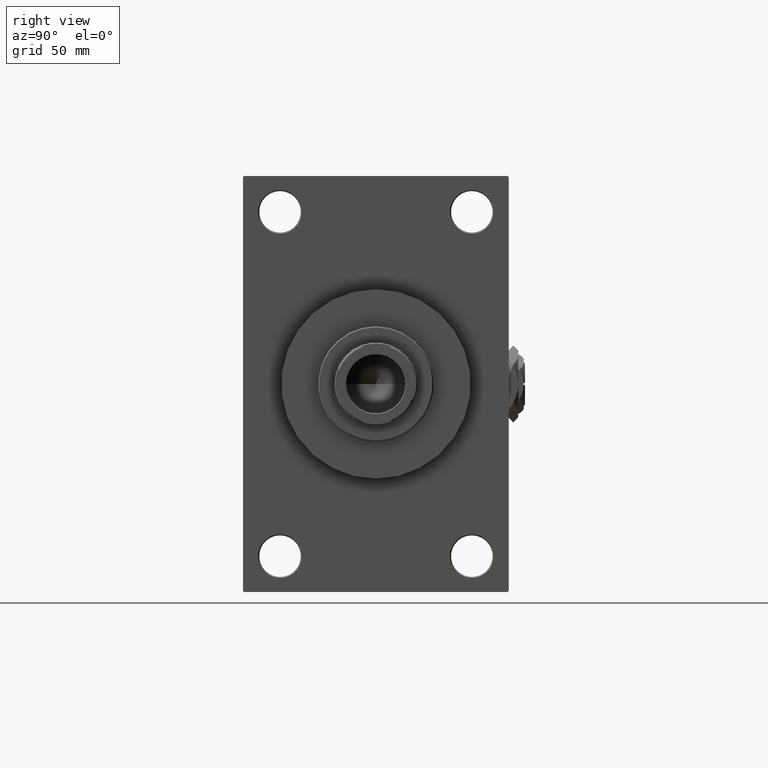
[diagram: clean part render]
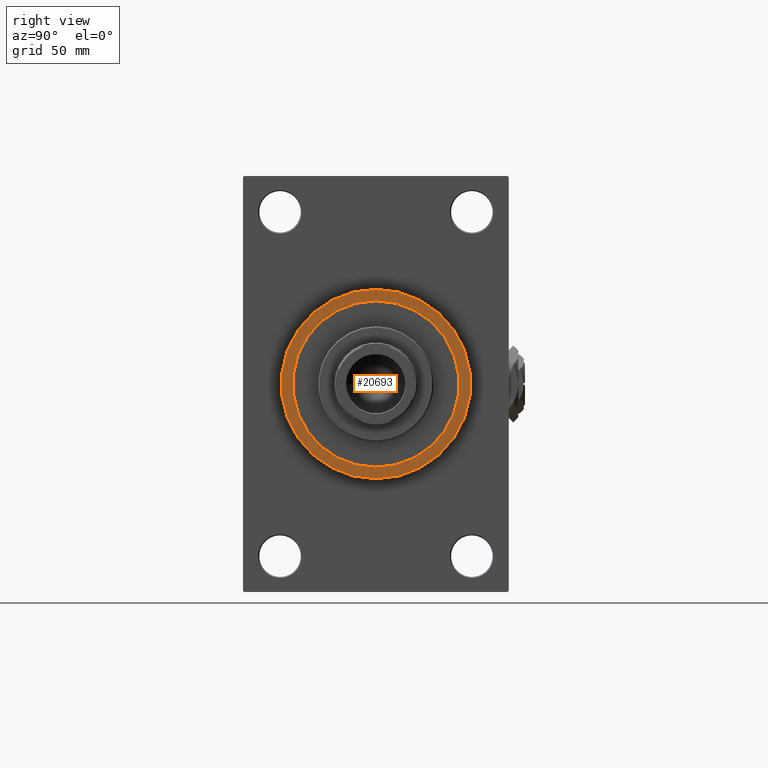
[diagram: same view with one face highlighted and labeled with its STEP entity id]
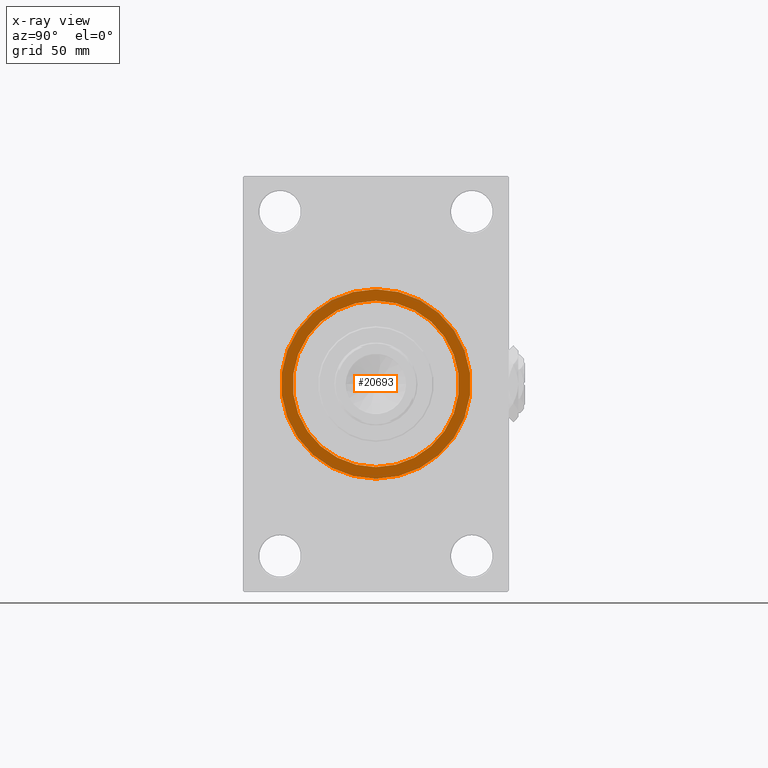
[diagram: x-ray of the same camera — body ghosted, the highlighted face saturated]
A machine part, right view. The second image highlights one B-rep face of the part: STEP entity #20693.
The next image is the same camera in x-ray: the body ghosted, the highlighted face saturated — about 0% of this face is hidden behind the body in this view.
In plain terms, the highlighted planar face has unit normal (1, 0, 0).
Its self-contained STEP definition (entity closure, byte-faithful):
#35 = CARTESIAN_POINT ( 'NONE',  ( 179.0000000000000000, 0.000000000000000000, 41.00000000000000000 ) ) ;
#2849 = AXIS2_PLACEMENT_3D ( 'NONE', #41976, #7453, #22834 ) ;
#7453 = DIRECTION ( 'NONE',  ( 1.000000000000000000, 0.000000000000000000, 0.000000000000000000 ) ) ;
#8254 = CIRCLE ( 'NONE', #49274, 41.00000000000000000 ) ;
#8316 = EDGE_CURVE ( 'NONE', #13550, #48940, #8254, .T. ) ;
#10033 = ORIENTED_EDGE ( 'NONE', *, *, #38997, .F. ) ;
#13398 = EDGE_CURVE ( 'NONE', #38456, #21861, #37440, .T. ) ;
#13550 = VERTEX_POINT ( 'NONE', #47481 ) ;
#15190 = CIRCLE ( 'NONE', #20024, 41.00000000000000000 ) ;
#16735 = DIRECTION ( 'NONE',  ( 0.000000000000000000, 0.000000000000000000, -1.000000000000000000 ) ) ;
#17081 = EDGE_LOOP ( 'NONE', ( #10033, #18256 ) ) ;
#17110 = CARTESIAN_POINT ( 'NONE',  ( 179.0000000000000000, 0.000000000000000000, -36.00000000000000000 ) ) ;
#17218 = FACE_OUTER_BOUND ( 'NONE', #33121, .T. ) ;
#18022 = CARTESIAN_POINT ( 'NONE',  ( 179.0000000000000000, 0.000000000000000000, 0.000000000000000000 ) ) ;
#18256 = ORIENTED_EDGE ( 'NONE', *, *, #13398, .F. ) ;
#20024 = AXIS2_PLACEMENT_3D ( 'NONE', #24496, #32304, #36083 ) ;
#20693 = ADVANCED_FACE ( 'NONE', ( #35644, #17218 ), #24558, .T. ) ;
#20766 = DIRECTION ( 'NONE',  ( 1.000000000000000000, 0.000000000000000000, 0.000000000000000000 ) ) ;
#21861 = VERTEX_POINT ( 'NONE', #17110 ) ;
#22834 = DIRECTION ( 'NONE',  ( 0.000000000000000000, 0.000000000000000000, -1.000000000000000000 ) ) ;
#24496 = CARTESIAN_POINT ( 'NONE',  ( 179.0000000000000000, 0.000000000000000000, 0.000000000000000000 ) ) ;
#24558 = PLANE ( 'NONE',  #33548 ) ;
#25336 = DIRECTION ( 'NONE',  ( 0.000000000000000000, 0.000000000000000000, -1.000000000000000000 ) ) ;
#25403 = DIRECTION ( 'NONE',  ( 0.000000000000000000, 0.000000000000000000, -1.000000000000000000 ) ) ;
#25897 = DIRECTION ( 'NONE',  ( 1.000000000000000000, 0.000000000000000000, 0.000000000000000000 ) ) ;
#31864 = CARTESIAN_POINT ( 'NONE',  ( 179.0000000000000000, 0.000000000000000000, 0.000000000000000000 ) ) ;
#32304 = DIRECTION ( 'NONE',  ( 1.000000000000000000, 0.000000000000000000, 0.000000000000000000 ) ) ;
#32555 = ORIENTED_EDGE ( 'NONE', *, *, #8316, .T. ) ;
#33121 = EDGE_LOOP ( 'NONE', ( #47397, #32555 ) ) ;
#33548 = AXIS2_PLACEMENT_3D ( 'NONE', #31864, #20766, #16735 ) ;
#35644 = FACE_BOUND ( 'NONE', #17081, .T. ) ;
#36083 = DIRECTION ( 'NONE',  ( 0.000000000000000000, 0.000000000000000000, -1.000000000000000000 ) ) ;
#36922 = DIRECTION ( 'NONE',  ( 1.000000000000000000, 0.000000000000000000, 0.000000000000000000 ) ) ;
#37440 = CIRCLE ( 'NONE', #2849, 36.00000000000000000 ) ;
#38456 = VERTEX_POINT ( 'NONE', #48976 ) ;
#38997 = EDGE_CURVE ( 'NONE', #21861, #38456, #48821, .T. ) ;
#41976 = CARTESIAN_POINT ( 'NONE',  ( 179.0000000000000000, 0.000000000000000000, 0.000000000000000000 ) ) ;
#43366 = EDGE_CURVE ( 'NONE', #48940, #13550, #15190, .T. ) ;
#45756 = CARTESIAN_POINT ( 'NONE',  ( 179.0000000000000000, 0.000000000000000000, 0.000000000000000000 ) ) ;
#46408 = AXIS2_PLACEMENT_3D ( 'NONE', #45756, #25897, #25403 ) ;
#47397 = ORIENTED_EDGE ( 'NONE', *, *, #43366, .T. ) ;
#47481 = CARTESIAN_POINT ( 'NONE',  ( 179.0000000000000000, 5.021051876504148963E-15, -41.00000000000000000 ) ) ;
#48821 = CIRCLE ( 'NONE', #46408, 36.00000000000000000 ) ;
#48940 = VERTEX_POINT ( 'NONE', #35 ) ;
#48976 = CARTESIAN_POINT ( 'NONE',  ( 179.0000000000000000, 4.408728476930470856E-15, 36.00000000000000000 ) ) ;
#49274 = AXIS2_PLACEMENT_3D ( 'NONE', #18022, #36922, #25336 ) ;